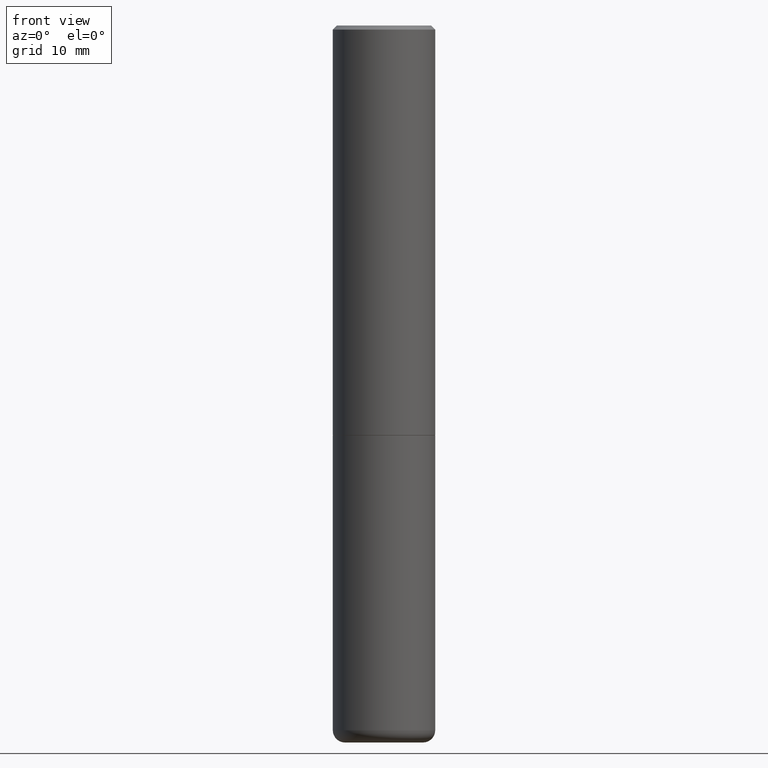
[diagram: clean part render]
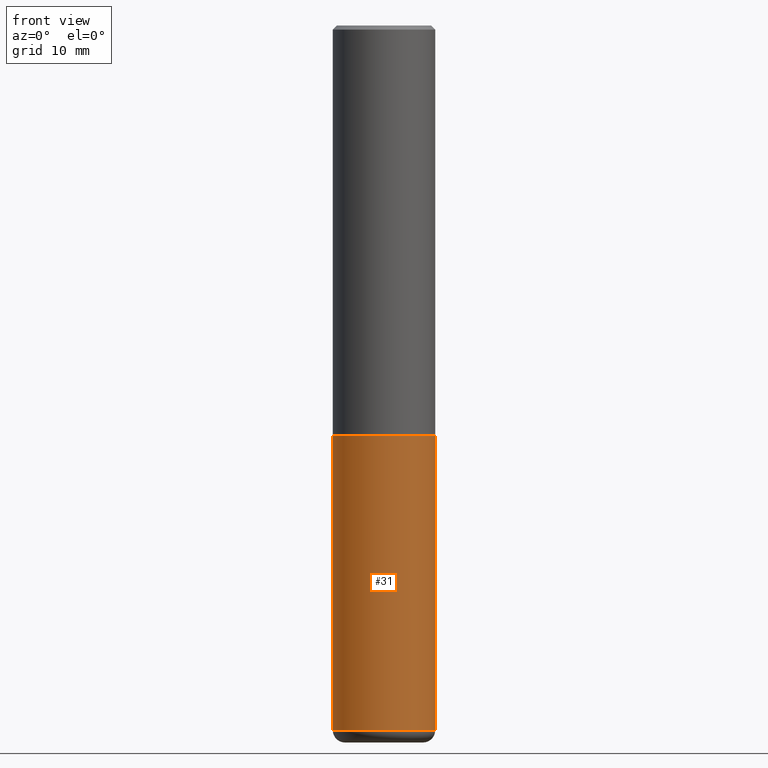
[diagram: same view with one face highlighted and labeled with its STEP entity id]
A machine part, front view. The second image highlights one B-rep face of the part: STEP entity #31.
In plain terms, the highlighted cylindrical surface (partial cylindrical patch) has radius 6.35 mm, axis along (-0, 0, 1).
Its self-contained STEP definition (entity closure, byte-faithful):
#23 = EDGE_CURVE ( 'NONE', #323, #281, #96, .T. ) ;
#31 = ADVANCED_FACE ( 'NONE', ( #408 ), #331, .T. ) ;
#36 = ORIENTED_EDGE ( 'NONE', *, *, #162, .F. ) ;
#37 = CARTESIAN_POINT ( 'NONE',  ( 0.2500000000000000000, -8.728703347107857054E-15, -2.000000000000000000 ) ) ;
#43 = DIRECTION ( 'NONE',  ( 1.000000000000000000, -6.982962677686266711E-15, 4.876176775795935793E-29 ) ) ;
#46 = LINE ( 'NONE', #181, #55 ) ;
#47 = LINE ( 'NONE', #183, #194 ) ;
#48 = CARTESIAN_POINT ( 'NONE',  ( -0.2499999999999999722, -1.023433896622016898E-14, -3.439999999999999947 ) ) ;
#55 = VECTOR ( 'NONE', #339, 39.37007874015748143 ) ;
#64 = ORIENTED_EDGE ( 'NONE', *, *, #195, .T. ) ;
#66 = VERTEX_POINT ( 'NONE', #48 ) ;
#83 = CARTESIAN_POINT ( 'NONE',  ( 4.890937612370273194E-29, -6.982962677686291165E-15, -2.000000000000000000 ) ) ;
#96 = CIRCLE ( 'NONE', #230, 0.2500000000000000000 ) ;
#110 = DIRECTION ( 'NONE',  ( -2.445468806185136877E-29, 3.491481338843145188E-15, 1.000000000000000000 ) ) ;
#121 = EDGE_CURVE ( 'NONE', #417, #281, #46, .T. ) ;
#139 = CARTESIAN_POINT ( 'NONE',  ( 0.2499999999999999722, -1.375643647504198770E-14, -3.439999999999999947 ) ) ;
#148 = AXIS2_PLACEMENT_3D ( 'NONE', #242, #151, #43 ) ;
#151 = DIRECTION ( 'NONE',  ( -2.445468806185136597E-29, 3.491481338843145583E-15, 1.000000000000000000 ) ) ;
#162 = EDGE_CURVE ( 'NONE', #66, #323, #47, .T. ) ;
#177 = CIRCLE ( 'NONE', #285, 0.2500000000000000000 ) ;
#181 = CARTESIAN_POINT ( 'NONE',  ( 0.2500000000000000000, -1.745740669421566678E-15, 1.219044193948983948E-29 ) ) ;
#183 = CARTESIAN_POINT ( 'NONE',  ( -0.2500000000000000000, 1.776356839400250465E-15, -1.229733772563726445E-29 ) ) ;
#194 = VECTOR ( 'NONE', #110, 39.37007874015748143 ) ;
#195 = EDGE_CURVE ( 'NONE', #66, #417, #177, .T. ) ;
#215 = DIRECTION ( 'NONE',  ( -2.445468806185136597E-29, 3.491481338843145583E-15, 1.000000000000000000 ) ) ;
#219 = EDGE_LOOP ( 'NONE', ( #36, #64, #283, #374 ) ) ;
#230 = AXIS2_PLACEMENT_3D ( 'NONE', #83, #215, #366 ) ;
#241 = CARTESIAN_POINT ( 'NONE',  ( 8.412412693276869938E-29, -1.201069580562042103E-14, -3.439999999999999947 ) ) ;
#242 = CARTESIAN_POINT ( 'NONE',  ( 0.000000000000000000, 0.000000000000000000, 0.000000000000000000 ) ) ;
#275 = DIRECTION ( 'NONE',  ( 1.000000000000000000, -6.982962677686270655E-15, 0.000000000000000000 ) ) ;
#281 = VERTEX_POINT ( 'NONE', #37 ) ;
#283 = ORIENTED_EDGE ( 'NONE', *, *, #121, .T. ) ;
#284 = CARTESIAN_POINT ( 'NONE',  ( -0.2500000000000000000, -7.720472402253106025E-15, -2.000000000000000000 ) ) ;
#285 = AXIS2_PLACEMENT_3D ( 'NONE', #241, #318, #275 ) ;
#318 = DIRECTION ( 'NONE',  ( -2.445468806185136597E-29, 3.491481338843145583E-15, 1.000000000000000000 ) ) ;
#323 = VERTEX_POINT ( 'NONE', #284 ) ;
#331 = CYLINDRICAL_SURFACE ( 'NONE', #148, 0.2500000000000000000 ) ;
#339 = DIRECTION ( 'NONE',  ( -2.445468806185136877E-29, 3.491481338843145188E-15, 1.000000000000000000 ) ) ;
#366 = DIRECTION ( 'NONE',  ( 1.000000000000000000, -6.982962677686266711E-15, 0.000000000000000000 ) ) ;
#374 = ORIENTED_EDGE ( 'NONE', *, *, #23, .F. ) ;
#408 = FACE_OUTER_BOUND ( 'NONE', #219, .T. ) ;
#417 = VERTEX_POINT ( 'NONE', #139 ) ;